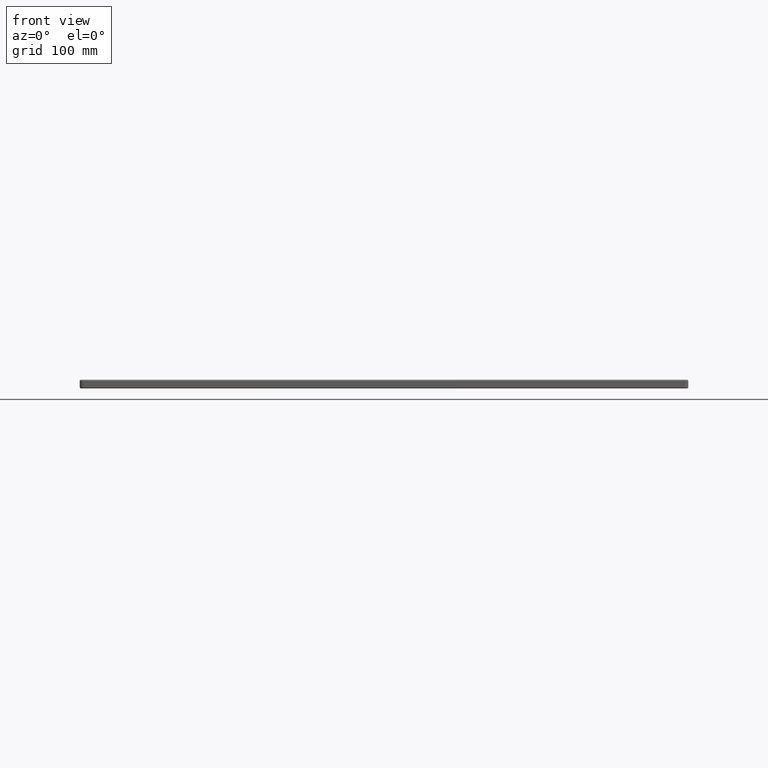
[diagram: clean part render]
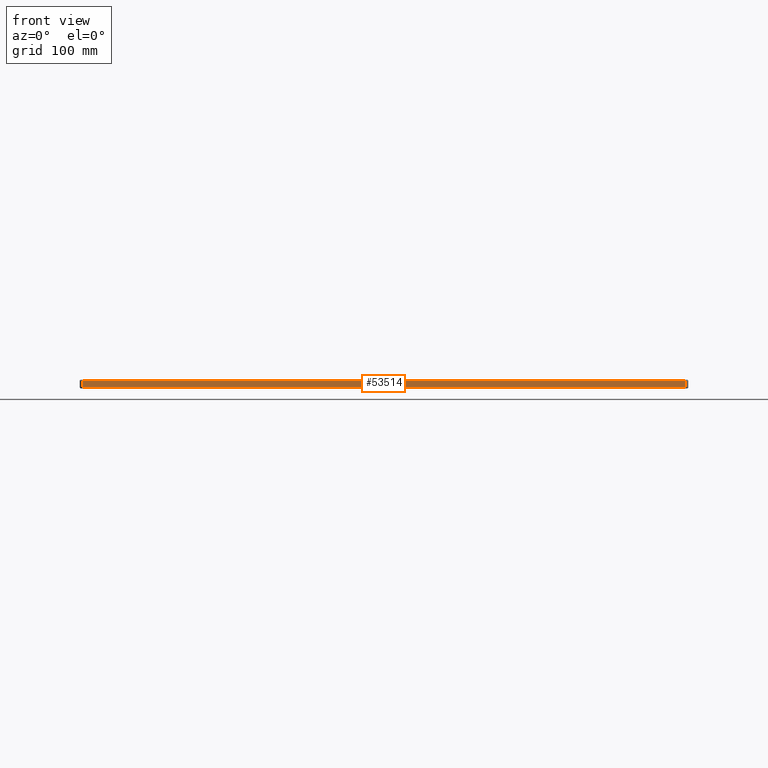
[diagram: same view with one face highlighted and labeled with its STEP entity id]
A machine part, front view. The second image highlights one B-rep face of the part: STEP entity #53514.
In plain terms, the highlighted planar face has unit normal (0, -1, 0).
Its self-contained STEP definition (entity closure, byte-faithful):
#1142 = DIRECTION ( 'NONE',  ( 0.0000000000000000000, 0.0000000000000000000, 1.000000000000000000 ) ) ;
#1633 = CARTESIAN_POINT ( 'NONE',  ( 4.999999999999999100, 0.0000000000000000000, -13.00000000000000000 ) ) ;
#3017 = VERTEX_POINT ( 'NONE', #21076 ) ;
#3031 = VERTEX_POINT ( 'NONE', #12174 ) ;
#4995 = ORIENTED_EDGE ( 'NONE', *, *, #46769, .T. ) ;
#5340 = VERTEX_POINT ( 'NONE', #47134 ) ;
#6684 = EDGE_CURVE ( 'NONE', #5340, #3017, #37754, .T. ) ;
#10793 = DIRECTION ( 'NONE',  ( 0.0000000000000000000, -1.000000000000000000, 0.0000000000000000000 ) ) ;
#12174 = CARTESIAN_POINT ( 'NONE',  ( 4.999999999999999100, 0.0000000000000000000, -2.000000000000000000 ) ) ;
#14108 = VECTOR ( 'NONE', #1142, 1000.000000000000000 ) ;
#14813 = EDGE_CURVE ( 'NONE', #3017, #3031, #34515, .T. ) ;
#20915 = VECTOR ( 'NONE', #39763, 1000.000000000000000 ) ;
#21076 = CARTESIAN_POINT ( 'NONE',  ( 895.0000000000000000, 0.0000000000000000000, -2.000000000000000000 ) ) ;
#29503 = DIRECTION ( 'NONE',  ( 1.000000000000000000, 0.0000000000000000000, 0.0000000000000000000 ) ) ;
#29571 = ORIENTED_EDGE ( 'NONE', *, *, #14813, .T. ) ;
#30389 = VECTOR ( 'NONE', #29503, 1000.000000000000000 ) ;
#31794 = CARTESIAN_POINT ( 'NONE',  ( 4.999999999999999100, 0.0000000000000000000, -11.00000000000000000 ) ) ;
#34515 = LINE ( 'NONE', #45860, #49256 ) ;
#37754 = LINE ( 'NONE', #42844, #14108 ) ;
#37910 = ORIENTED_EDGE ( 'NONE', *, *, #6684, .T. ) ;
#38768 = CARTESIAN_POINT ( 'NONE',  ( 0.0000000000000000000, 0.0000000000000000000, -11.00000000000000000 ) ) ;
#39364 = AXIS2_PLACEMENT_3D ( 'NONE', #48807, #10793, #44439 ) ;
#39763 = DIRECTION ( 'NONE',  ( -0.0000000000000000000, -0.0000000000000000000, -1.000000000000000000 ) ) ;
#40708 = LINE ( 'NONE', #38768, #30389 ) ;
#42324 = DIRECTION ( 'NONE',  ( -1.000000000000000000, -0.0000000000000000000, 0.0000000000000000000 ) ) ;
#42574 = FACE_OUTER_BOUND ( 'NONE', #43607, .T. ) ;
#42844 = CARTESIAN_POINT ( 'NONE',  ( 895.0000000000000000, 0.0000000000000000000, -13.00000000000000000 ) ) ;
#43607 = EDGE_LOOP ( 'NONE', ( #4995, #46236, #37910, #29571 ) ) ;
#44171 = VERTEX_POINT ( 'NONE', #31794 ) ;
#44439 = DIRECTION ( 'NONE',  ( 0.0000000000000000000, -0.0000000000000000000, -1.000000000000000000 ) ) ;
#45288 = LINE ( 'NONE', #1633, #20915 ) ;
#45860 = CARTESIAN_POINT ( 'NONE',  ( 4.999999999999999100, 0.0000000000000000000, -2.000000000000000000 ) ) ;
#46236 = ORIENTED_EDGE ( 'NONE', *, *, #47612, .T. ) ;
#46769 = EDGE_CURVE ( 'NONE', #3031, #44171, #45288, .T. ) ;
#47134 = CARTESIAN_POINT ( 'NONE',  ( 895.0000000000000000, 0.0000000000000000000, -11.00000000000000000 ) ) ;
#47612 = EDGE_CURVE ( 'NONE', #44171, #5340, #40708, .T. ) ;
#48807 = CARTESIAN_POINT ( 'NONE',  ( 0.0000000000000000000, 0.0000000000000000000, -13.00000000000000000 ) ) ;
#49256 = VECTOR ( 'NONE', #42324, 1000.000000000000000 ) ;
#53514 = ADVANCED_FACE ( 'NONE', ( #42574 ), #56826, .T. ) ;
#56826 = PLANE ( 'NONE',  #39364 ) ;